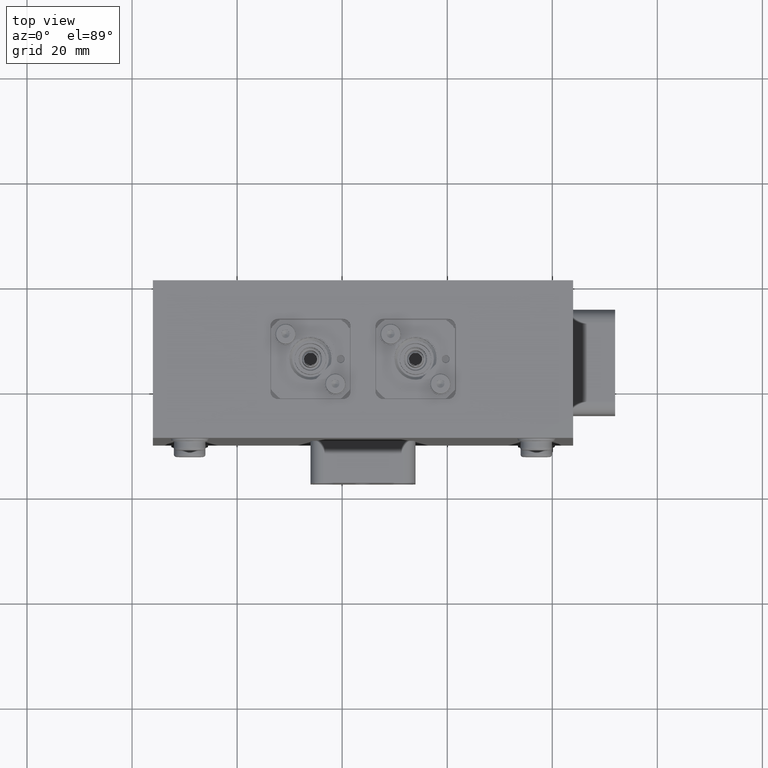
[diagram: clean part render]
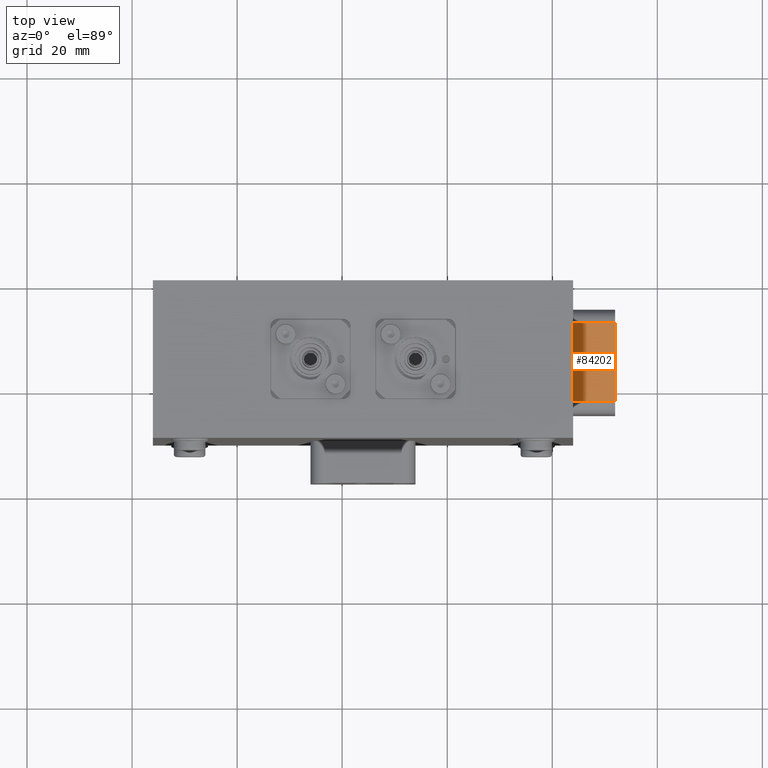
[diagram: same view with one face highlighted and labeled with its STEP entity id]
A machine part, top view. The second image highlights one B-rep face of the part: STEP entity #84202.
In plain terms, the highlighted planar face has unit normal (0, 0, 1).
Its self-contained STEP definition (entity closure, byte-faithful):
#56849 = DIRECTION ( 'NONE',  ( -7.395570986446961600E-032, -0.0000000000000000000, 1.000000000000000000 ) ) ;
#56851 = VECTOR ( 'NONE', #56849, 1000.000000000000000 ) ;
#56853 = CARTESIAN_POINT ( 'NONE',  ( -10.00000000000002700, 0.0000000000000000000, -7.500000000000029300 ) ) ;
#56858 = LINE ( 'NONE', #56853, #56851 ) ;
#57000 = CARTESIAN_POINT ( 'NONE',  ( -10.00000000000002700, 0.0000000000000000000, 7.500000000000020400 ) ) ;
#57148 = CARTESIAN_POINT ( 'NONE',  ( -10.00000000000002300, 0.0000000000000000000, -7.500000000000029300 ) ) ;
#69677 = PLANE ( 'NONE',  #69712 ) ;
#69679 = CARTESIAN_POINT ( 'NONE',  ( -10.00000000000002300, -8.000000000000000000, -7.500000000000029300 ) ) ;
#69698 = DIRECTION ( 'NONE',  ( -7.395570986446961600E-032, -0.0000000000000000000, 1.000000000000000000 ) ) ;
#69699 = VECTOR ( 'NONE', #69698, 1000.000000000000000 ) ;
#69700 = CARTESIAN_POINT ( 'NONE',  ( -10.00000000000002700, -8.000000000000000000, -7.500000000000029300 ) ) ;
#69701 = LINE ( 'NONE', #69700, #69699 ) ;
#69704 = DIRECTION ( 'NONE',  ( -7.395570986446962700E-032, -0.0000000000000000000, 1.000000000000000000 ) ) ;
#69705 = DIRECTION ( 'NONE',  ( -1.000000000000000000, 0.0000000000000000000, -7.395570986446962700E-032 ) ) ;
#69706 = CARTESIAN_POINT ( 'NONE',  ( -10.00000000000002700, -8.000000000000000000, -7.500000000000029300 ) ) ;
#69710 = FACE_OUTER_BOUND ( 'NONE', #84229, .T. ) ;
#69712 = AXIS2_PLACEMENT_3D ( 'NONE', #69706, #69705, #69704 ) ;
#69812 = DIRECTION ( 'NONE',  ( 0.0000000000000000000, 1.000000000000000000, -0.0000000000000000000 ) ) ;
#69813 = VECTOR ( 'NONE', #69812, 1000.000000000000000 ) ;
#69814 = CARTESIAN_POINT ( 'NONE',  ( -10.00000000000002700, -8.000000000000000000, 7.500000000000020400 ) ) ;
#69815 = LINE ( 'NONE', #69814, #69813 ) ;
#69820 = CARTESIAN_POINT ( 'NONE',  ( -10.00000000000002700, -8.000000000000000000, 7.500000000000020400 ) ) ;
#69943 = CARTESIAN_POINT ( 'NONE',  ( -10.00000000000002300, -8.000000000000000000, -7.500000000000029300 ) ) ;
#69944 = LINE ( 'NONE', #69943, #69960 ) ;
#69959 = DIRECTION ( 'NONE',  ( 0.0000000000000000000, 1.000000000000000000, -0.0000000000000000000 ) ) ;
#69960 = VECTOR ( 'NONE', #69959, 1000.000000000000000 ) ;
#83969 = EDGE_CURVE ( 'NONE', #84071, #83995, #56858, .T. ) ;
#83995 = VERTEX_POINT ( 'NONE', #57000 ) ;
#84071 = VERTEX_POINT ( 'NONE', #57148 ) ;
#84202 = ADVANCED_FACE ( 'NONE', ( #69710 ), #69677, .T. ) ;
#84203 = VERTEX_POINT ( 'NONE', #69679 ) ;
#84206 = EDGE_CURVE ( 'NONE', #84203, #84261, #69701, .T. ) ;
#84229 = EDGE_LOOP ( 'NONE', ( #84318, #84321, #84238, #84393 ) ) ;
#84238 = ORIENTED_EDGE ( 'NONE', *, *, #84206, .T. ) ;
#84252 = EDGE_CURVE ( 'NONE', #84261, #83995, #69815, .T. ) ;
#84261 = VERTEX_POINT ( 'NONE', #69820 ) ;
#84318 = ORIENTED_EDGE ( 'NONE', *, *, #83969, .F. ) ;
#84320 = EDGE_CURVE ( 'NONE', #84203, #84071, #69944, .T. ) ;
#84321 = ORIENTED_EDGE ( 'NONE', *, *, #84320, .F. ) ;
#84393 = ORIENTED_EDGE ( 'NONE', *, *, #84252, .T. ) ;